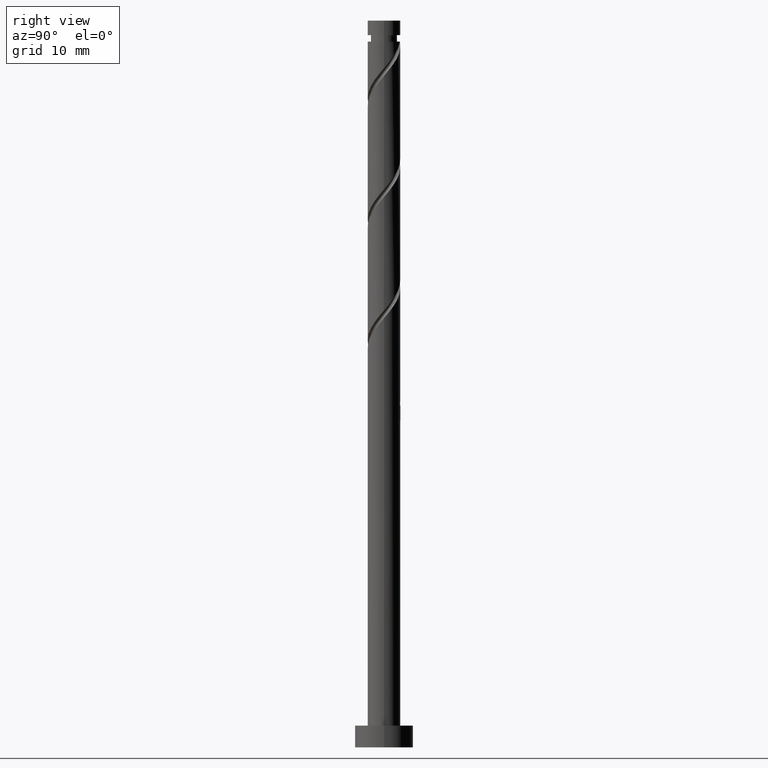
[diagram: clean part render]
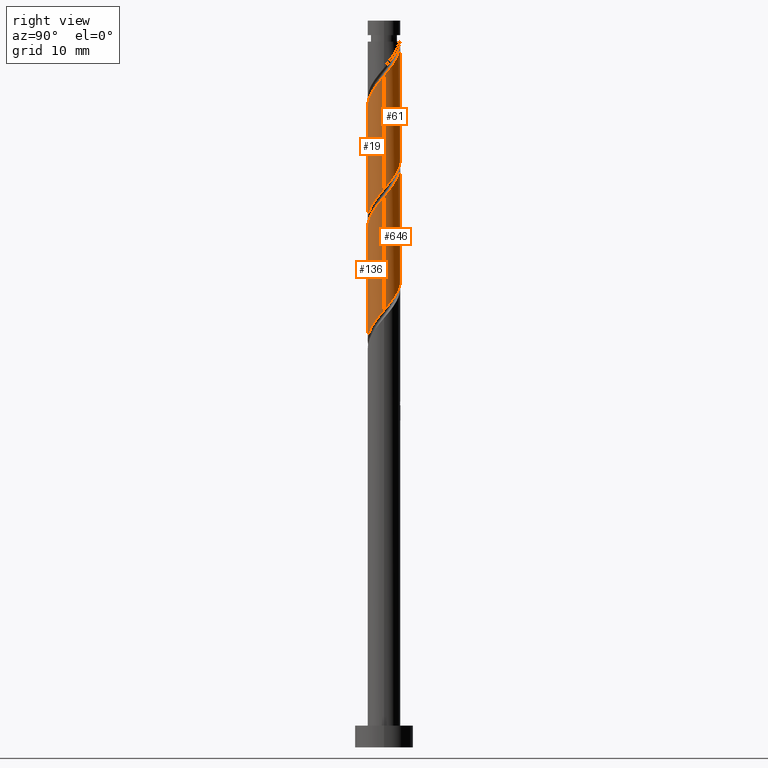
[diagram: same view with one multi-face feature highlighted, each face labeled with its STEP entity id]
A machine part, right view. The highlighted faces form ONE feature: a constant-radius fillet chain: 4 tangent blend faces with common blend radius 2.25 mm. The faces share edges in the B-rep.
Their STEP definitions:
[1] entity #136 (Cylinder):
#62 = CARTESIAN_POINT ( 'NONE',  ( 2.007429886082036763, -1.090928262238790802, 74.41308190522774169 ) ) ;
#88 =( BOUNDED_CURVE ( )  B_SPLINE_CURVE ( 2, ( #966, #669, #398, #859, #751, #207, #1201, #202, #544, #1105, #1100, #181, #639, #1340, #1326, #1093, #411, #62, #535, #519, #975 ),
 .UNSPECIFIED., .F., .T. ) 
 B_SPLINE_CURVE_WITH_KNOTS ( ( 3, 2, 2, 2, 2, 2, 2, 2, 2, 2, 3 ),
 ( 0.3045248053855292847, 0.3055555555555555802, 0.3194444444444444198, 0.3333333333333333703, 0.3472222222222222099, 0.3611111111111111605, 0.3750000000000000000, 0.3888888888888888395, 0.4027777777777777901, 0.4166666666666666297, 0.4295248053855291737 ),
 .UNSPECIFIED. ) 
 CURVE ( )  GEOMETRIC_REPRESENTATION_ITEM ( )  RATIONAL_B_SPLINE_CURVE ( ( 0.9071930855141258077, 0.9080659294509733082, 0.9090909090909131685, 0.8952797754656477425, 0.9090909090909131685, 0.8952797754656477425, 0.9090909090909131685, 0.8952797754656477425, 0.9090909090909131685, 0.8952797754656477425, 0.9090909090909131685, 0.8952797754656477425, 0.9090909090909131685, 0.8952797754656477425, 0.9090909090909131685, 0.8952797754656477425, 0.9090909090909131685, 0.8952797754656477425, 0.9090909090909131685, 0.8963047551055877138, 0.9071930855141256966 ) ) 
 REPRESENTATION_ITEM ( '' )  );
#98 = CARTESIAN_POINT ( 'NONE',  ( -1.513247610087451678, -1.711718695186592809, 54.04271153485735368 ) ) ;
#127 = AXIS2_PLACEMENT_3D ( 'NONE', #178, #299, #198 ) ;
#136 = ADVANCED_FACE ( 'NONE', ( #430 ), #408, .T. ) ;
#163 = CARTESIAN_POINT ( 'NONE',  ( -2.249999999999999556, -3.361267473051105278E-16, 51.79578864540166450 ) ) ;
#178 = CARTESIAN_POINT ( 'NONE',  ( 0.000000000000000000, 0.000000000000000000, 100.0000000000000000 ) ) ;
#181 = CARTESIAN_POINT ( 'NONE',  ( 0.05894335423581345546, -2.283949408782541379, 71.63530412744994180 ) ) ;
#187 = ORIENTED_EDGE ( 'NONE', *, *, #606, .F. ) ;
#198 = DIRECTION ( 'NONE',  ( -1.000000000000000000, 0.000000000000000000, 0.000000000000000000 ) ) ;
#202 = CARTESIAN_POINT ( 'NONE',  ( -1.422941152145175359, -1.787494810738887274, 69.78345227559807995 ) ) ;
#207 = CARTESIAN_POINT ( 'NONE',  ( -1.948486531846222780, -1.193021146543750799, 68.85752634967215613 ) ) ;
#211 = CARTESIAN_POINT ( 'NONE',  ( 1.948486531846220116, -1.193021146543751021, 58.67234116448698700 ) ) ;
#217 = CARTESIAN_POINT ( 'NONE',  ( -2.250000000000000000, 0.000000000000000000, 100.0000000000000000 ) ) ;
#227 = EDGE_CURVE ( 'NONE', #1453, #959, #1236, .T. ) ;
#235 = DIRECTION ( 'NONE',  ( -0.000000000000000000, -0.000000000000000000, -1.000000000000000000 ) ) ;
#237 = CARTESIAN_POINT ( 'NONE',  ( 0.7257680691206149781, -2.166370220145118264, 56.82048931263513936 ) ) ;
#270 = CARTESIAN_POINT ( 'NONE',  ( 2.250000000000002665, -9.038074760870697025E-16, 75.73407886875750705 ) ) ;
#289 = CARTESIAN_POINT ( 'NONE',  ( -2.250000000000002665, 8.963379928136229465E-16, 67.40074553542417846 ) ) ;
#299 = DIRECTION ( 'NONE',  ( -0.000000000000000000, -0.000000000000000000, -1.000000000000000000 ) ) ;
#340 = EDGE_CURVE ( 'NONE', #1024, #959, #1239, .T. ) ;
#379 = CARTESIAN_POINT ( 'NONE',  ( -2.249999999999999556, -3.361267473051105278E-16, 51.79578864540166450 ) ) ;
#398 = CARTESIAN_POINT ( 'NONE',  ( -2.249251085256695593, -0.05804787223997467244, 67.46863746078328461 ) ) ;
#408 = CYLINDRICAL_SURFACE ( 'NONE', #127, 2.250000000000000000 ) ;
#411 = CARTESIAN_POINT ( 'NONE',  ( 1.760338748084745220, -1.401323478712693138, 73.95011894226475135 ) ) ;
#430 = FACE_OUTER_BOUND ( 'NONE', #821, .T. ) ;
#448 = CARTESIAN_POINT ( 'NONE',  ( -0.4477443466979798559, -2.204999999999999627, 55.43160042374625363 ) ) ;
#519 = CARTESIAN_POINT ( 'NONE',  ( 2.250000000000003997, -0.3668723365960258609, 75.30415935639187808 ) ) ;
#535 = CARTESIAN_POINT ( 'NONE',  ( 2.133458188693678981, -0.7147420213586844762, 74.87604486819067517 ) ) ;
#544 = CARTESIAN_POINT ( 'NONE',  ( -1.074354610632896501, -1.976932515442004101, 70.24641523856108449 ) ) ;
#560 = CARTESIAN_POINT ( 'NONE',  ( -1.760338748084743665, -1.401323478712690251, 53.57974857189439888 ) ) ;
#578 = CARTESIAN_POINT ( 'NONE',  ( 2.249251085256692484, -0.05804787223997596307, 60.06123005337588694 ) ) ;
#606 = EDGE_CURVE ( 'NONE', #1092, #1453, #830, .T. ) ;
#618 = VECTOR ( 'NONE', #1270, 1000.000000000000000 ) ;
#639 = CARTESIAN_POINT ( 'NONE',  ( 0.4477443466979795783, -2.205000000000002736, 72.09826709041290371 ) ) ;
#669 = CARTESIAN_POINT ( 'NONE',  ( -2.250000000000002220, -0.02902876724705344413, 67.43476290935652173 ) ) ;
#684 = EDGE_CURVE ( 'NONE', #1024, #1092, #88, .T. ) ;
#690 = CARTESIAN_POINT ( 'NONE',  ( -1.174896474623798870, -1.918884643202026563, 54.50567449782033691 ) ) ;
#700 = CARTESIAN_POINT ( 'NONE',  ( -0.05894335423581530814, -2.283949408782537827, 55.89456338670920843 ) ) ;
#751 = CARTESIAN_POINT ( 'NONE',  ( -2.093751105527146272, -0.8238363357511384599, 68.39456338670919422 ) ) ;
#784 = ORIENTED_EDGE ( 'NONE', *, *, #684, .F. ) ;
#804 = CARTESIAN_POINT ( 'NONE',  ( 1.685713841995696294, -1.490257978641318148, 58.20937820152402509 ) ) ;
#812 = CARTESIAN_POINT ( 'NONE',  ( 2.249999999999999556, -0.02902876724704853834, 60.09510460480264982 ) ) ;
#821 = EDGE_LOOP ( 'NONE', ( #187, #784, #1163, #1339 ) ) ;
#830 = LINE ( 'NONE', #851, #618 ) ;
#851 = CARTESIAN_POINT ( 'NONE',  ( 2.250000000000000000, 2.755455298081543792E-16, 100.0000000000000000 ) ) ;
#859 = CARTESIAN_POINT ( 'NONE',  ( -2.239015679208069987, -0.4546515249585260654, 67.93160042374621810 ) ) ;
#893 = CARTESIAN_POINT ( 'NONE',  ( 0.3334123574424003866, -2.225159814463828045, 56.35752634967216324 ) ) ;
#901 = CARTESIAN_POINT ( 'NONE',  ( 2.249999999999999556, -5.303333124147299307E-16, 60.12912197873500730 ) ) ;
#959 = VERTEX_POINT ( 'NONE', #379 ) ;
#966 = CARTESIAN_POINT ( 'NONE',  ( -2.250000000000002665, 8.963379928136229465E-16, 67.40074553542417846 ) ) ;
#975 = CARTESIAN_POINT ( 'NONE',  ( 2.250000000000002665, -9.038074760870697025E-16, 75.73407886875752126 ) ) ;
#1024 = VERTEX_POINT ( 'NONE', #289 ) ;
#1092 = VERTEX_POINT ( 'NONE', #270 ) ;
#1093 = CARTESIAN_POINT ( 'NONE',  ( 1.513247610087452788, -1.711718695186595252, 73.48715597930180365 ) ) ;
#1095 = CARTESIAN_POINT ( 'NONE',  ( -2.250000000000000000, -0.3668723365960266936, 52.22570815776729347 ) ) ;
#1100 = CARTESIAN_POINT ( 'NONE',  ( -0.3334123574424015524, -2.225159814463832042, 71.17234116448697989 ) ) ;
#1105 = CARTESIAN_POINT ( 'NONE',  ( -0.7257680691206166435, -2.166370220145122261, 70.70937820152398956 ) ) ;
#1113 = CARTESIAN_POINT ( 'NONE',  ( 2.249999999999999556, -5.303333124147299307E-16, 60.12912197873500730 ) ) ;
#1123 = CARTESIAN_POINT ( 'NONE',  ( -0.8365453391601453959, -2.126050591217459651, 54.96863746078327750 ) ) ;
#1140 = CARTESIAN_POINT ( 'NONE',  ( -2.133458188693676760, -0.7147420213586820337, 52.65382264596846795 ) ) ;
#1163 = ORIENTED_EDGE ( 'NONE', *, *, #340, .T. ) ;
#1201 = CARTESIAN_POINT ( 'NONE',  ( -1.685713841995698958, -1.490257978641318370, 69.32048931263514646 ) ) ;
#1234 = CARTESIAN_POINT ( 'NONE',  ( 2.239015679208066878, -0.4546515249585263430, 59.59826709041291082 ) ) ;
#1236 =( BOUNDED_CURVE ( )  B_SPLINE_CURVE ( 2, ( #901, #812, #578, #1234, #1472, #211, #804, #1260, #1464, #237, #893, #700, #448, #1123, #690, #98, #560, #1247, #1140, #1095, #163 ),
 .UNSPECIFIED., .F., .T. ) 
 B_SPLINE_CURVE_WITH_KNOTS ( ( 3, 2, 2, 2, 2, 2, 2, 2, 2, 2, 3 ),
 ( 0.8045248053855290626, 0.8055555555555555802, 0.8194444444444444198, 0.8333333333333333703, 0.8472222222222222099, 0.8611111111111111605, 0.8750000000000000000, 0.8888888888888888395, 0.9027777777777777901, 0.9166666666666666297, 0.9295248053855290626 ),
 .UNSPECIFIED. ) 
 CURVE ( )  GEOMETRIC_REPRESENTATION_ITEM ( )  RATIONAL_B_SPLINE_CURVE ( ( 0.9071930855141199235, 0.9080659294509675350, 0.9090909090909076173, 0.8952797754656421914, 0.9090909090909076173, 0.8952797754656421914, 0.9090909090909076173, 0.8952797754656421914, 0.9090909090909076173, 0.8952797754656421914, 0.9090909090909076173, 0.8952797754656421914, 0.9090909090909076173, 0.8952797754656421914, 0.9090909090909076173, 0.8952797754656421914, 0.9090909090909076173, 0.8952797754656421914, 0.9090909090909076173, 0.8963047551055822737, 0.9071930855141199235 ) ) 
 REPRESENTATION_ITEM ( '' )  );
#1239 = LINE ( 'NONE', #217, #1370 ) ;
#1247 = CARTESIAN_POINT ( 'NONE',  ( -2.007429886082034542, -1.090928262238788804, 53.11678560893142276 ) ) ;
#1260 = CARTESIAN_POINT ( 'NONE',  ( 1.422941152145172916, -1.787494810738885054, 57.74641523856107739 ) ) ;
#1270 = DIRECTION ( 'NONE',  ( -0.000000000000000000, -0.000000000000000000, -1.000000000000000000 ) ) ;
#1326 = CARTESIAN_POINT ( 'NONE',  ( 1.174896474623799092, -1.918884643202029006, 73.02419301633882753 ) ) ;
#1339 = ORIENTED_EDGE ( 'NONE', *, *, #227, .F. ) ;
#1340 = CARTESIAN_POINT ( 'NONE',  ( 0.8365453391601450628, -2.126050591217463204, 72.56123005337589404 ) ) ;
#1370 = VECTOR ( 'NONE', #235, 1000.000000000000000 ) ;
#1453 = VERTEX_POINT ( 'NONE', #1113 ) ;
#1464 = CARTESIAN_POINT ( 'NONE',  ( 1.074354610632894280, -1.976932515442001437, 57.28345227559810837 ) ) ;
#1472 = CARTESIAN_POINT ( 'NONE',  ( 2.093751105527143608, -0.8238363357511377938, 59.13530412744997022 ) ) ;
[2] entity #646 (Cylinder):
#26 = CARTESIAN_POINT ( 'NONE',  ( 2.239015679208069987, 0.4546515249585257323, 76.26493375707958933 ) ) ;
#36 = DIRECTION ( 'NONE',  ( -1.000000000000000000, 0.000000000000000000, 0.000000000000000000 ) ) ;
#51 = EDGE_CURVE ( 'NONE', #268, #1453, #470, .T. ) ;
#75 = CARTESIAN_POINT ( 'NONE',  ( 0.4477443466979802444, 2.204999999999999627, 63.76493375707957512 ) ) ;
#81 = CARTESIAN_POINT ( 'NONE',  ( 1.174896474623799536, 1.918884643202025675, 62.83900783115365130 ) ) ;
#89 = CARTESIAN_POINT ( 'NONE',  ( -2.250000000000003997, 0.3668723365960249172, 83.63749268972522088 ) ) ;
#95 = LINE ( 'NONE', #679, #541 ) ;
#167 = CARTESIAN_POINT ( 'NONE',  ( 2.249999999999999556, -5.303333124147299307E-16, 60.12912197873500730 ) ) ;
#180 = CARTESIAN_POINT ( 'NONE',  ( -0.3334123574424004421, 2.225159814463828045, 64.69085968300549894 ) ) ;
#268 = VERTEX_POINT ( 'NONE', #731 ) ;
#270 = CARTESIAN_POINT ( 'NONE',  ( 2.250000000000002665, -9.038074760870697025E-16, 75.73407886875750705 ) ) ;
#290 = CARTESIAN_POINT ( 'NONE',  ( -2.093751105527143608, 0.8238363357511380158, 67.46863746078328461 ) ) ;
#291 = CARTESIAN_POINT ( 'NONE',  ( -2.250000000000002220, 1.139096199200645277E-15, 84.06741220209080723 ) ) ;
#330 = EDGE_CURVE ( 'NONE', #1038, #268, #95, .T. ) ;
#341 = CARTESIAN_POINT ( 'NONE',  ( 2.133458188693676760, 0.7147420213586825888, 60.98715597930180365 ) ) ;
#382 = CARTESIAN_POINT ( 'NONE',  ( -1.174896474623799092, 1.918884643202029006, 81.35752634967217034 ) ) ;
#388 = CARTESIAN_POINT ( 'NONE',  ( -2.249999999999999556, -3.361267473051105278E-16, 68.46245531206834301 ) ) ;
#390 = CARTESIAN_POINT ( 'NONE',  ( 1.422941152145175359, 1.787494810738887052, 78.11678560893142276 ) ) ;
#470 =( BOUNDED_CURVE ( )  B_SPLINE_CURVE ( 2, ( #388, #637, #850, #1192, #290, #510, #628, #1082, #965, #1199, #180, #764, #75, #1443, #81, #877, #770, #660, #341, #806, #167 ),
 .UNSPECIFIED., .F., .T. ) 
 B_SPLINE_CURVE_WITH_KNOTS ( ( 3, 2, 2, 2, 2, 2, 2, 2, 2, 2, 3 ),
 ( 0.6795248053855290626, 0.6805555555555555802, 0.6944444444444444198, 0.7083333333333333703, 0.7222222222222222099, 0.7361111111111111605, 0.7500000000000000000, 0.7638888888888888395, 0.7777777777777777901, 0.7916666666666666297, 0.8045248053855290626 ),
 .UNSPECIFIED. ) 
 CURVE ( )  GEOMETRIC_REPRESENTATION_ITEM ( )  RATIONAL_B_SPLINE_CURVE ( ( 0.9071930855141199235, 0.9080659294509675350, 0.9090909090909076173, 0.8952797754656421914, 0.9090909090909076173, 0.8952797754656421914, 0.9090909090909076173, 0.8952797754656421914, 0.9090909090909076173, 0.8952797754656421914, 0.9090909090909076173, 0.8952797754656421914, 0.9090909090909076173, 0.8952797754656421914, 0.9090909090909076173, 0.8952797754656421914, 0.9090909090909076173, 0.8952797754656421914, 0.9090909090909076173, 0.8963047551055822737, 0.9071930855141199235 ) ) 
 REPRESENTATION_ITEM ( '' )  );
#488 = AXIS2_PLACEMENT_3D ( 'NONE', #960, #1075, #36 ) ;
#497 = CARTESIAN_POINT ( 'NONE',  ( -0.8365453391601459510, 2.126050591217462760, 80.89456338670920843 ) ) ;
#510 = CARTESIAN_POINT ( 'NONE',  ( -1.948486531846220116, 1.193021146543749911, 67.00567449782030849 ) ) ;
#541 = VECTOR ( 'NONE', #1034, 1000.000000000000000 ) ;
#606 = EDGE_CURVE ( 'NONE', #1092, #1453, #830, .T. ) ;
#617 = CARTESIAN_POINT ( 'NONE',  ( -0.4477443466979794118, 2.205000000000002736, 80.43160042374627494 ) ) ;
#618 = VECTOR ( 'NONE', #1270, 1000.000000000000000 ) ;
#624 = CARTESIAN_POINT ( 'NONE',  ( 2.249251085256695593, 0.05804787223997486673, 75.80197079411659900 ) ) ;
#628 = CARTESIAN_POINT ( 'NONE',  ( -1.685713841995696738, 1.490257978641317482, 66.54271153485734658 ) ) ;
#636 = CARTESIAN_POINT ( 'NONE',  ( -2.250000000000002220, 1.139096199200645277E-15, 84.06741220209080723 ) ) ;
#637 = CARTESIAN_POINT ( 'NONE',  ( -2.249999999999999556, 0.02902876724704770567, 68.42843793813598552 ) ) ;
#646 = ADVANCED_FACE ( 'NONE', ( #837 ), #935, .T. ) ;
#647 = ORIENTED_EDGE ( 'NONE', *, *, #606, .T. ) ;
#660 = CARTESIAN_POINT ( 'NONE',  ( 2.007429886082034542, 1.090928262238788582, 61.45011894226475846 ) ) ;
#662 = ORIENTED_EDGE ( 'NONE', *, *, #330, .F. ) ;
#675 = EDGE_CURVE ( 'NONE', #1092, #1038, #814, .T. ) ;
#679 = CARTESIAN_POINT ( 'NONE',  ( -2.250000000000000000, 0.000000000000000000, 100.0000000000000000 ) ) ;
#730 = CARTESIAN_POINT ( 'NONE',  ( 2.250000000000002665, -9.038074760870697025E-16, 75.73407886875752126 ) ) ;
#731 = CARTESIAN_POINT ( 'NONE',  ( -2.249999999999999556, -3.361267473051105278E-16, 68.46245531206834301 ) ) ;
#745 = CARTESIAN_POINT ( 'NONE',  ( -0.05894335423581414241, 2.283949408782541379, 79.96863746078328461 ) ) ;
#764 = CARTESIAN_POINT ( 'NONE',  ( 0.05894335423581447547, 2.283949408782537827, 64.22789672004255124 ) ) ;
#770 = CARTESIAN_POINT ( 'NONE',  ( 1.760338748084743887, 1.401323478712690029, 61.91308190522773458 ) ) ;
#806 = CARTESIAN_POINT ( 'NONE',  ( 2.249999999999999556, 0.3668723365960254723, 60.55904149110064338 ) ) ;
#814 =( BOUNDED_CURVE ( )  B_SPLINE_CURVE ( 2, ( #730, #1415, #624, #26, #1308, #952, #1403, #390, #1409, #1178, #844, #745, #617, #497, #382, #1115, #1426, #1314, #878, #89, #291 ),
 .UNSPECIFIED., .F., .T. ) 
 B_SPLINE_CURVE_WITH_KNOTS ( ( 3, 2, 2, 2, 2, 2, 2, 2, 2, 2, 3 ),
 ( 0.4295248053855291737, 0.4305555555555555802, 0.4444444444444444198, 0.4583333333333333703, 0.4722222222222222099, 0.4861111111111111605, 0.5000000000000000000, 0.5138888888888888395, 0.5277777777777777901, 0.5416666666666667407, 0.5545248053855291737 ),
 .UNSPECIFIED. ) 
 CURVE ( )  GEOMETRIC_REPRESENTATION_ITEM ( )  RATIONAL_B_SPLINE_CURVE ( ( 0.9071930855141256966, 0.9080659294509731971, 0.9090909090909131685, 0.8952797754656477425, 0.9090909090909131685, 0.8952797754656477425, 0.9090909090909131685, 0.8952797754656477425, 0.9090909090909131685, 0.8952797754656477425, 0.9090909090909131685, 0.8952797754656477425, 0.9090909090909131685, 0.8952797754656477425, 0.9090909090909131685, 0.8952797754656477425, 0.9090909090909131685, 0.8952797754656477425, 0.9090909090909131685, 0.8963047551055877138, 0.9071930855141255856 ) ) 
 REPRESENTATION_ITEM ( '' )  );
#830 = LINE ( 'NONE', #851, #618 ) ;
#837 = FACE_OUTER_BOUND ( 'NONE', #1007, .T. ) ;
#844 = CARTESIAN_POINT ( 'NONE',  ( 0.3334123574424028846, 2.225159814463832042, 79.50567449782033691 ) ) ;
#850 = CARTESIAN_POINT ( 'NONE',  ( -2.249251085256692484, 0.05804787223997515816, 68.39456338670922264 ) ) ;
#851 = CARTESIAN_POINT ( 'NONE',  ( 2.250000000000000000, 2.755455298081543792E-16, 100.0000000000000000 ) ) ;
#877 = CARTESIAN_POINT ( 'NONE',  ( 1.513247610087452788, 1.711718695186591033, 62.37604486819068939 ) ) ;
#878 = CARTESIAN_POINT ( 'NONE',  ( -2.133458188693679425, 0.7147420213586835880, 83.20937820152400377 ) ) ;
#935 = CYLINDRICAL_SURFACE ( 'NONE', #488, 2.250000000000000000 ) ;
#952 = CARTESIAN_POINT ( 'NONE',  ( 1.948486531846223446, 1.193021146543749689, 77.19085968300548473 ) ) ;
#960 = CARTESIAN_POINT ( 'NONE',  ( 0.000000000000000000, 0.000000000000000000, 100.0000000000000000 ) ) ;
#965 = CARTESIAN_POINT ( 'NONE',  ( -1.074354610632894280, 1.976932515442001437, 65.61678560893143697 ) ) ;
#1007 = EDGE_LOOP ( 'NONE', ( #1268, #647, #1060, #662 ) ) ;
#1034 = DIRECTION ( 'NONE',  ( -0.000000000000000000, -0.000000000000000000, -1.000000000000000000 ) ) ;
#1038 = VERTEX_POINT ( 'NONE', #636 ) ;
#1060 = ORIENTED_EDGE ( 'NONE', *, *, #51, .F. ) ;
#1075 = DIRECTION ( 'NONE',  ( -0.000000000000000000, -0.000000000000000000, -1.000000000000000000 ) ) ;
#1082 = CARTESIAN_POINT ( 'NONE',  ( -1.422941152145173360, 1.787494810738884832, 66.07974857189439888 ) ) ;
#1092 = VERTEX_POINT ( 'NONE', #270 ) ;
#1113 = CARTESIAN_POINT ( 'NONE',  ( 2.249999999999999556, -5.303333124147299307E-16, 60.12912197873500730 ) ) ;
#1115 = CARTESIAN_POINT ( 'NONE',  ( -1.513247610087453010, 1.711718695186594807, 81.82048931263513225 ) ) ;
#1178 = CARTESIAN_POINT ( 'NONE',  ( 0.7257680691206175316, 2.166370220145120928, 79.04271153485736079 ) ) ;
#1192 = CARTESIAN_POINT ( 'NONE',  ( -2.239015679208066878, 0.4546515249585260099, 67.93160042374621810 ) ) ;
#1199 = CARTESIAN_POINT ( 'NONE',  ( -0.7257680691206154222, 2.166370220145118708, 65.15382264596847506 ) ) ;
#1268 = ORIENTED_EDGE ( 'NONE', *, *, #675, .F. ) ;
#1270 = DIRECTION ( 'NONE',  ( -0.000000000000000000, -0.000000000000000000, -1.000000000000000000 ) ) ;
#1308 = CARTESIAN_POINT ( 'NONE',  ( 2.093751105527146716, 0.8238363357511376828, 76.72789672004252282 ) ) ;
#1314 = CARTESIAN_POINT ( 'NONE',  ( -2.007429886082036763, 1.090928262238790580, 82.74641523856107028 ) ) ;
#1403 = CARTESIAN_POINT ( 'NONE',  ( 1.685713841995698958, 1.490257978641319037, 77.65382264596847506 ) ) ;
#1409 = CARTESIAN_POINT ( 'NONE',  ( 1.074354610632896723, 1.976932515442004101, 78.57974857189439888 ) ) ;
#1415 = CARTESIAN_POINT ( 'NONE',  ( 2.250000000000001776, 0.02902876724705040490, 75.76809624268985033 ) ) ;
#1426 = CARTESIAN_POINT ( 'NONE',  ( -1.760338748084745220, 1.401323478712693138, 82.28345227559810837 ) ) ;
#1443 = CARTESIAN_POINT ( 'NONE',  ( 0.8365453391601450628, 2.126050591217459651, 63.30197079411660610 ) ) ;
#1453 = VERTEX_POINT ( 'NONE', #1113 ) ;
[3] entity #19 (Cylinder):
#9 = CARTESIAN_POINT ( 'NONE',  ( 0.4477443466979795783, -2.205000000000002736, 88.76493375707957512 ) ) ;
#19 = ADVANCED_FACE ( 'NONE', ( #380 ), #483, .T. ) ;
#24 = CARTESIAN_POINT ( 'NONE',  ( 2.250000000000002220, -1.146565682474092428E-15, 92.40074553542416425 ) ) ;
#42 = CARTESIAN_POINT ( 'NONE',  ( 0.000000000000000000, 0.000000000000000000, 100.0000000000000000 ) ) ;
#58 = ORIENTED_EDGE ( 'NONE', *, *, #593, .F. ) ;
#95 = LINE ( 'NONE', #679, #541 ) ;
#123 = CARTESIAN_POINT ( 'NONE',  ( -1.422941152145175359, -1.787494810738887274, 86.45011894226476556 ) ) ;
#133 = ORIENTED_EDGE ( 'NONE', *, *, #958, .F. ) ;
#135 = CARTESIAN_POINT ( 'NONE',  ( 0.05894335423581345546, -2.283949408782541379, 88.30197079411659900 ) ) ;
#137 = CARTESIAN_POINT ( 'NONE',  ( 2.250000000000000000, 2.755455298081543792E-16, 100.0000000000000000 ) ) ;
#141 = CARTESIAN_POINT ( 'NONE',  ( -0.3334123574424015524, -2.225159814463832042, 87.83900783115367972 ) ) ;
#194 = VERTEX_POINT ( 'NONE', #570 ) ;
#215 = CARTESIAN_POINT ( 'NONE',  ( -2.239015679208069987, -0.4546515249585260654, 84.59826709041290371 ) ) ;
#257 = CARTESIAN_POINT ( 'NONE',  ( 2.133458188693678981, -0.7147420213586844762, 91.54271153485734658 ) ) ;
#268 = VERTEX_POINT ( 'NONE', #731 ) ;
#283 = DIRECTION ( 'NONE',  ( -0.000000000000000000, -0.000000000000000000, -1.000000000000000000 ) ) ;
#321 = CARTESIAN_POINT ( 'NONE',  ( 2.250000000000002220, -1.146565682474092231E-15, 92.40074553542415003 ) ) ;
#326 = AXIS2_PLACEMENT_3D ( 'NONE', #42, #283, #372 ) ;
#330 = EDGE_CURVE ( 'NONE', #1038, #268, #95, .T. ) ;
#353 = CARTESIAN_POINT ( 'NONE',  ( 0.3334123574424003866, -2.225159814463828045, 73.02419301633882753 ) ) ;
#358 = CARTESIAN_POINT ( 'NONE',  ( 2.249251085256692484, -0.05804787223997596307, 76.72789672004252282 ) ) ;
#364 = CARTESIAN_POINT ( 'NONE',  ( 1.760338748084745220, -1.401323478712693138, 90.61678560893143697 ) ) ;
#371 = CARTESIAN_POINT ( 'NONE',  ( -1.513247610087451678, -1.711718695186592809, 70.70937820152400377 ) ) ;
#372 = DIRECTION ( 'NONE',  ( -1.000000000000000000, 0.000000000000000000, 0.000000000000000000 ) ) ;
#380 = FACE_OUTER_BOUND ( 'NONE', #836, .T. ) ;
#434 = CARTESIAN_POINT ( 'NONE',  ( -2.249251085256695593, -0.05804787223997467244, 84.13530412744994180 ) ) ;
#442 =( BOUNDED_CURVE ( )  B_SPLINE_CURVE ( 2, ( #1383, #933, #358, #1286, #604, #1346, #586, #550, #1391, #1008, #353, #785, #1467, #677, #1459, #371, #1374, #1237, #1120, #715, #721 ),
 .UNSPECIFIED., .F., .T. ) 
 B_SPLINE_CURVE_WITH_KNOTS ( ( 3, 2, 2, 2, 2, 2, 2, 2, 2, 2, 3 ),
 ( 0.5545248053855291737, 0.5555555555555555802, 0.5694444444444444198, 0.5833333333333333703, 0.5972222222222222099, 0.6111111111111111605, 0.6250000000000000000, 0.6388888888888888395, 0.6527777777777777901, 0.6666666666666666297, 0.6795248053855290626 ),
 .UNSPECIFIED. ) 
 CURVE ( )  GEOMETRIC_REPRESENTATION_ITEM ( )  RATIONAL_B_SPLINE_CURVE ( ( 0.9071930855141200345, 0.9080659294509676460, 0.9090909090909076173, 0.8952797754656421914, 0.9090909090909076173, 0.8952797754656421914, 0.9090909090909076173, 0.8952797754656421914, 0.9090909090909076173, 0.8952797754656421914, 0.9090909090909076173, 0.8952797754656421914, 0.9090909090909076173, 0.8952797754656421914, 0.9090909090909076173, 0.8952797754656421914, 0.9090909090909076173, 0.8952797754656421914, 0.9090909090909076173, 0.8963047551055822737, 0.9071930855141199235 ) ) 
 REPRESENTATION_ITEM ( '' )  );
#478 = CARTESIAN_POINT ( 'NONE',  ( 1.513247610087452788, -1.711718695186595252, 90.15382264596846085 ) ) ;
#483 = CYLINDRICAL_SURFACE ( 'NONE', #326, 2.250000000000000000 ) ;
#541 = VECTOR ( 'NONE', #1034, 1000.000000000000000 ) ;
#550 = CARTESIAN_POINT ( 'NONE',  ( 1.422941152145172916, -1.787494810738885054, 74.41308190522771326 ) ) ;
#570 = CARTESIAN_POINT ( 'NONE',  ( 2.249999999999999556, -5.303333124147299307E-16, 76.79578864540165739 ) ) ;
#586 = CARTESIAN_POINT ( 'NONE',  ( 1.685713841995696294, -1.490257978641318148, 74.87604486819068939 ) ) ;
#593 = EDGE_CURVE ( 'NONE', #723, #194, #823, .T. ) ;
#596 = CARTESIAN_POINT ( 'NONE',  ( 0.8365453391601450628, -2.126050591217463204, 89.22789672004253703 ) ) ;
#604 = CARTESIAN_POINT ( 'NONE',  ( 2.093751105527143608, -0.8238363357511377938, 75.80197079411661321 ) ) ;
#636 = CARTESIAN_POINT ( 'NONE',  ( -2.250000000000002220, 1.139096199200645277E-15, 84.06741220209080723 ) ) ;
#677 = CARTESIAN_POINT ( 'NONE',  ( -0.8365453391601453959, -2.126050591217459651, 71.63530412744994180 ) ) ;
#679 = CARTESIAN_POINT ( 'NONE',  ( -2.250000000000000000, 0.000000000000000000, 100.0000000000000000 ) ) ;
#708 = CARTESIAN_POINT ( 'NONE',  ( -1.948486531846222780, -1.193021146543750799, 85.52419301633882753 ) ) ;
#715 = CARTESIAN_POINT ( 'NONE',  ( -2.250000000000000000, -0.3668723365960266936, 68.89237482443395777 ) ) ;
#721 = CARTESIAN_POINT ( 'NONE',  ( -2.249999999999999556, -3.361267473051105278E-16, 68.46245531206834301 ) ) ;
#723 = VERTEX_POINT ( 'NONE', #321 ) ;
#731 = CARTESIAN_POINT ( 'NONE',  ( -2.249999999999999556, -3.361267473051105278E-16, 68.46245531206834301 ) ) ;
#739 = VECTOR ( 'NONE', #1068, 1000.000000000000000 ) ;
#785 = CARTESIAN_POINT ( 'NONE',  ( -0.05894335423581530814, -2.283949408782537827, 72.56123005337586562 ) ) ;
#815 = CARTESIAN_POINT ( 'NONE',  ( -2.093751105527146272, -0.8238363357511384599, 85.06123005337586562 ) ) ;
#823 = LINE ( 'NONE', #137, #739 ) ;
#826 = CARTESIAN_POINT ( 'NONE',  ( 2.007429886082036763, -1.090928262238790802, 91.07974857189437046 ) ) ;
#836 = EDGE_LOOP ( 'NONE', ( #58, #133, #1402, #1281 ) ) ;
#909 = EDGE_CURVE ( 'NONE', #194, #268, #442, .T. ) ;
#910 =( BOUNDED_CURVE ( )  B_SPLINE_CURVE ( 2, ( #918, #924, #434, #215, #815, #708, #1152, #123, #1045, #1278, #141, #135, #9, #596, #1052, #478, #364, #826, #257, #1058, #24 ),
 .UNSPECIFIED., .F., .T. ) 
 B_SPLINE_CURVE_WITH_KNOTS ( ( 3, 2, 2, 2, 2, 2, 2, 2, 2, 2, 3 ),
 ( 0.5545248053855291737, 0.5555555555555555802, 0.5694444444444444198, 0.5833333333333332593, 0.5972222222222222099, 0.6111111111111111605, 0.6250000000000000000, 0.6388888888888888395, 0.6527777777777777901, 0.6666666666666667407, 0.6795248053855291737 ),
 .UNSPECIFIED. ) 
 CURVE ( )  GEOMETRIC_REPRESENTATION_ITEM ( )  RATIONAL_B_SPLINE_CURVE ( ( 0.9071930855141255856, 0.9080659294509731971, 0.9090909090909131685, 0.8952797754656477425, 0.9090909090909131685, 0.8952797754656477425, 0.9090909090909131685, 0.8952797754656477425, 0.9090909090909131685, 0.8952797754656477425, 0.9090909090909131685, 0.8952797754656477425, 0.9090909090909131685, 0.8952797754656477425, 0.9090909090909131685, 0.8952797754656477425, 0.9090909090909131685, 0.8952797754656477425, 0.9090909090909131685, 0.8963047551055877138, 0.9071930855141255856 ) ) 
 REPRESENTATION_ITEM ( '' )  );
#918 = CARTESIAN_POINT ( 'NONE',  ( -2.250000000000002220, 1.139096199200645277E-15, 84.06741220209080723 ) ) ;
#924 = CARTESIAN_POINT ( 'NONE',  ( -2.250000000000001776, -0.02902876724705009612, 84.10142957602316471 ) ) ;
#933 = CARTESIAN_POINT ( 'NONE',  ( 2.249999999999999556, -0.02902876724705167472, 76.76177127146927148 ) ) ;
#958 = EDGE_CURVE ( 'NONE', #1038, #723, #910, .T. ) ;
#1008 = CARTESIAN_POINT ( 'NONE',  ( 0.7257680691206149781, -2.166370220145118264, 73.48715597930180365 ) ) ;
#1034 = DIRECTION ( 'NONE',  ( -0.000000000000000000, -0.000000000000000000, -1.000000000000000000 ) ) ;
#1038 = VERTEX_POINT ( 'NONE', #636 ) ;
#1045 = CARTESIAN_POINT ( 'NONE',  ( -1.074354610632896501, -1.976932515442004101, 86.91308190522774169 ) ) ;
#1052 = CARTESIAN_POINT ( 'NONE',  ( 1.174896474623799092, -1.918884643202029006, 89.69085968300549894 ) ) ;
#1058 = CARTESIAN_POINT ( 'NONE',  ( 2.250000000000003997, -0.3668723365960260829, 91.97082602305856369 ) ) ;
#1068 = DIRECTION ( 'NONE',  ( -0.000000000000000000, -0.000000000000000000, -1.000000000000000000 ) ) ;
#1120 = CARTESIAN_POINT ( 'NONE',  ( -2.133458188693676760, -0.7147420213586820337, 69.32048931263514646 ) ) ;
#1152 = CARTESIAN_POINT ( 'NONE',  ( -1.685713841995698958, -1.490257978641318370, 85.98715597930181787 ) ) ;
#1237 = CARTESIAN_POINT ( 'NONE',  ( -2.007429886082034542, -1.090928262238788804, 69.78345227559807995 ) ) ;
#1278 = CARTESIAN_POINT ( 'NONE',  ( -0.7257680691206166435, -2.166370220145122261, 87.37604486819070360 ) ) ;
#1281 = ORIENTED_EDGE ( 'NONE', *, *, #909, .F. ) ;
#1286 = CARTESIAN_POINT ( 'NONE',  ( 2.239015679208066878, -0.4546515249585263430, 76.26493375707957512 ) ) ;
#1346 = CARTESIAN_POINT ( 'NONE',  ( 1.948486531846220116, -1.193021146543751021, 75.33900783115366551 ) ) ;
#1374 = CARTESIAN_POINT ( 'NONE',  ( -1.760338748084743665, -1.401323478712690251, 70.24641523856107028 ) ) ;
#1383 = CARTESIAN_POINT ( 'NONE',  ( 2.249999999999999556, -5.303333124147299307E-16, 76.79578864540165739 ) ) ;
#1391 = CARTESIAN_POINT ( 'NONE',  ( 1.074354610632894280, -1.976932515442001437, 73.95011894226480820 ) ) ;
#1402 = ORIENTED_EDGE ( 'NONE', *, *, #330, .T. ) ;
#1459 = CARTESIAN_POINT ( 'NONE',  ( -1.174896474623798870, -1.918884643202026563, 71.17234116448699410 ) ) ;
#1467 = CARTESIAN_POINT ( 'NONE',  ( -0.4477443466979798559, -2.204999999999999627, 72.09826709041290371 ) ) ;
[4] entity #61 (Cylinder):
#55 = FACE_OUTER_BOUND ( 'NONE', #91, .T. ) ;
#61 = ADVANCED_FACE ( 'NONE', ( #55 ), #1455, .T. ) ;
#65 = DIRECTION ( 'NONE',  ( -0.000000000000000000, -0.000000000000000000, -1.000000000000000000 ) ) ;
#67 = ORIENTED_EDGE ( 'NONE', *, *, #193, .T. ) ;
#91 = EDGE_LOOP ( 'NONE', ( #376, #594, #1394, #1375, #67 ) ) ;
#137 = CARTESIAN_POINT ( 'NONE',  ( 2.250000000000000000, 2.755455298081543792E-16, 100.0000000000000000 ) ) ;
#148 =( BOUNDED_CURVE ( )  B_SPLINE_CURVE ( 2, ( #188, #1207, #648, #527, #1215, #984, #1438, #1444, #1335, #316, #261, #727, #889 ),
 .UNSPECIFIED., .F., .T. ) 
 B_SPLINE_CURVE_WITH_KNOTS ( ( 3, 2, 2, 2, 2, 2, 3 ),
 ( 0.6795248053855291737, 0.6805555555555555802, 0.6944444444444444198, 0.7083333333333331483, 0.7222222222222220989, 0.7361111111111109384, 0.7499999999999997780 ),
 .UNSPECIFIED. ) 
 CURVE ( )  GEOMETRIC_REPRESENTATION_ITEM ( )  RATIONAL_B_SPLINE_CURVE ( ( 0.9071930855141255856, 0.9080659294509731971, 0.9090909090909131685, 0.8952797754656477425, 0.9090909090909131685, 0.8952797754656477425, 0.9090909090909131685, 0.8952797754656477425, 0.9090909090909131685, 0.8952797754656477425, 0.9090909090909131685, 0.8952797754656479645, 0.9090909090909129464 ) ) 
 REPRESENTATION_ITEM ( '' )  );
#188 = CARTESIAN_POINT ( 'NONE',  ( 2.250000000000002220, -1.146565682474092428E-15, 92.40074553542416425 ) ) ;
#193 = EDGE_CURVE ( 'NONE', #736, #955, #1422, .T. ) ;
#194 = VERTEX_POINT ( 'NONE', #570 ) ;
#223 = CARTESIAN_POINT ( 'NONE',  ( -1.948486531846220116, 1.193021146543749911, 83.67234116448700831 ) ) ;
#229 = AXIS2_PLACEMENT_3D ( 'NONE', #1030, #1486, #922 ) ;
#241 = CARTESIAN_POINT ( 'NONE',  ( 2.249999999999999556, -5.303333124147299307E-16, 76.79578864540165739 ) ) ;
#261 = CARTESIAN_POINT ( 'NONE',  ( 0.3334123574424028846, 2.225159814463832042, 96.17234116448700831 ) ) ;
#316 = CARTESIAN_POINT ( 'NONE',  ( 0.7257680691206175316, 2.166370220145120928, 95.70937820152403219 ) ) ;
#321 = CARTESIAN_POINT ( 'NONE',  ( 2.250000000000002220, -1.146565682474092231E-15, 92.40074553542415003 ) ) ;
#329 = CARTESIAN_POINT ( 'NONE',  ( -0.4477443466979791897, 2.205000000000000071, 97.09826709041288950 ) ) ;
#336 = CARTESIAN_POINT ( 'NONE',  ( 1.174896474623799536, 1.918884643202025675, 79.50567449782033691 ) ) ;
#345 = EDGE_CURVE ( 'NONE', #1405, #194, #979, .T. ) ;
#348 = CARTESIAN_POINT ( 'NONE',  ( 1.513247610087452788, 1.711718695186591033, 79.04271153485734658 ) ) ;
#376 = ORIENTED_EDGE ( 'NONE', *, *, #865, .F. ) ;
#457 = CARTESIAN_POINT ( 'NONE',  ( 0.4477443466979802444, 2.204999999999999627, 80.43160042374626073 ) ) ;
#473 = CARTESIAN_POINT ( 'NONE',  ( 2.007429886082034542, 1.090928262238788582, 78.11678560893142276 ) ) ;
#494 = DIRECTION ( 'NONE',  ( -0.000000000000000000, -0.000000000000000000, -1.000000000000000000 ) ) ;
#527 = CARTESIAN_POINT ( 'NONE',  ( 2.239015679208069987, 0.4546515249585257323, 92.93160042374623231 ) ) ;
#539 = DIRECTION ( 'NONE',  ( -1.000000000000000000, 0.000000000000000000, 0.000000000000000000 ) ) ;
#565 = CARTESIAN_POINT ( 'NONE',  ( -2.239015679208066878, 0.4546515249585260099, 84.59826709041293213 ) ) ;
#570 = CARTESIAN_POINT ( 'NONE',  ( 2.249999999999999556, -5.303333124147299307E-16, 76.79578864540165739 ) ) ;
#575 = CARTESIAN_POINT ( 'NONE',  ( -1.422941152145173360, 1.787494810738884832, 82.74641523856107028 ) ) ;
#581 = CARTESIAN_POINT ( 'NONE',  ( -1.074354610632894280, 1.976932515442001437, 82.28345227559810837 ) ) ;
#588 = CARTESIAN_POINT ( 'NONE',  ( -1.685713841995696738, 1.490257978641317482, 83.20937820152400377 ) ) ;
#593 = EDGE_CURVE ( 'NONE', #723, #194, #823, .T. ) ;
#594 = ORIENTED_EDGE ( 'NONE', *, *, #593, .T. ) ;
#627 = CARTESIAN_POINT ( 'NONE',  ( -2.250000000000000000, 0.000000000000000000, 100.0000000000000000 ) ) ;
#648 = CARTESIAN_POINT ( 'NONE',  ( 2.249251085256695593, 0.05804787223997486673, 92.46863746078329882 ) ) ;
#693 = VECTOR ( 'NONE', #494, 1000.000000000000000 ) ;
#723 = VERTEX_POINT ( 'NONE', #321 ) ;
#727 = CARTESIAN_POINT ( 'NONE',  ( -0.05894335423580777250, 2.283949408782541823, 96.63530412744997022 ) ) ;
#736 = VERTEX_POINT ( 'NONE', #1109 ) ;
#739 = VECTOR ( 'NONE', #1068, 1000.000000000000000 ) ;
#792 = CARTESIAN_POINT ( 'NONE',  ( 1.760338748084743887, 1.401323478712690029, 78.57974857189439888 ) ) ;
#809 = CARTESIAN_POINT ( 'NONE',  ( 2.250000000000000000, 0.3668723365960223637, 77.22570815776730058 ) ) ;
#823 = LINE ( 'NONE', #137, #739 ) ;
#828 = AXIS2_PLACEMENT_3D ( 'NONE', #1218, #65, #539 ) ;
#865 = EDGE_CURVE ( 'NONE', #723, #955, #148, .T. ) ;
#889 = CARTESIAN_POINT ( 'NONE',  ( -0.4477443466979791342, 2.205000000000000071, 97.09826709041288950 ) ) ;
#899 = CARTESIAN_POINT ( 'NONE',  ( 0.8365453391601450628, 2.126050591217459651, 79.96863746078329882 ) ) ;
#922 = DIRECTION ( 'NONE',  ( -1.000000000000000000, 0.000000000000000000, 0.000000000000000000 ) ) ;
#955 = VERTEX_POINT ( 'NONE', #329 ) ;
#957 = LINE ( 'NONE', #627, #693 ) ;
#979 =( BOUNDED_CURVE ( )  B_SPLINE_CURVE ( 2, ( #1469, #1146, #1129, #565, #1138, #223, #588, #575, #581, #1483, #1357, #1046, #457, #899, #336, #348, #792, #473, #1477, #809, #241 ),
 .UNSPECIFIED., .F., .T. ) 
 B_SPLINE_CURVE_WITH_KNOTS ( ( 3, 2, 2, 2, 2, 2, 2, 2, 2, 2, 3 ),
 ( 0.4295248053855288406, 0.4305555555555555802, 0.4444444444444444198, 0.4583333333333333148, 0.4722222222222222099, 0.4861111111111111049, 0.5000000000000000000, 0.5138888888888888395, 0.5277777777777777901, 0.5416666666666666297, 0.5545248053855291737 ),
 .UNSPECIFIED. ) 
 CURVE ( )  GEOMETRIC_REPRESENTATION_ITEM ( )  RATIONAL_B_SPLINE_CURVE ( ( 0.9071930855141194794, 0.9080659294509673130, 0.9090909090909076173, 0.8952797754656421914, 0.9090909090909076173, 0.8952797754656421914, 0.9090909090909076173, 0.8952797754656421914, 0.9090909090909076173, 0.8952797754656421914, 0.9090909090909076173, 0.8952797754656421914, 0.9090909090909076173, 0.8952797754656421914, 0.9090909090909076173, 0.8952797754656421914, 0.9090909090909076173, 0.8952797754656421914, 0.9090909090909076173, 0.8963047551055821627, 0.9071930855141200345 ) ) 
 REPRESENTATION_ITEM ( '' )  );
#984 = CARTESIAN_POINT ( 'NONE',  ( 1.948486531846223446, 1.193021146543749689, 93.85752634967217034 ) ) ;
#1030 = CARTESIAN_POINT ( 'NONE',  ( 0.000000000000000000, 0.000000000000000000, 97.09826709041291792 ) ) ;
#1046 = CARTESIAN_POINT ( 'NONE',  ( 0.05894335423581447547, 2.283949408782537827, 80.89456338670920843 ) ) ;
#1053 = EDGE_CURVE ( 'NONE', #736, #1405, #957, .T. ) ;
#1068 = DIRECTION ( 'NONE',  ( -0.000000000000000000, -0.000000000000000000, -1.000000000000000000 ) ) ;
#1109 = CARTESIAN_POINT ( 'NONE',  ( -2.250000000000000444, 0.000000000000000000, 97.09826709041291792 ) ) ;
#1129 = CARTESIAN_POINT ( 'NONE',  ( -2.249251085256692484, 0.05804787223997515816, 85.06123005337590826 ) ) ;
#1138 = CARTESIAN_POINT ( 'NONE',  ( -2.093751105527143608, 0.8238363357511380158, 84.13530412744997022 ) ) ;
#1146 = CARTESIAN_POINT ( 'NONE',  ( -2.250000000000000444, 0.02902876724704132189, 85.09510460480268534 ) ) ;
#1207 = CARTESIAN_POINT ( 'NONE',  ( 2.250000000000001776, 0.02902876724705018632, 92.43476290935652173 ) ) ;
#1215 = CARTESIAN_POINT ( 'NONE',  ( 2.093751105527146716, 0.8238363357511376828, 93.39456338670919422 ) ) ;
#1218 = CARTESIAN_POINT ( 'NONE',  ( 0.000000000000000000, 0.000000000000000000, 100.0000000000000000 ) ) ;
#1335 = CARTESIAN_POINT ( 'NONE',  ( 1.074354610632896723, 1.976932515442004101, 95.24641523856105607 ) ) ;
#1338 = CARTESIAN_POINT ( 'NONE',  ( -2.250000000000000000, -5.676807287819645982E-16, 85.12912197873504283 ) ) ;
#1357 = CARTESIAN_POINT ( 'NONE',  ( -0.3334123574424004421, 2.225159814463828045, 81.35752634967217034 ) ) ;
#1375 = ORIENTED_EDGE ( 'NONE', *, *, #1053, .F. ) ;
#1394 = ORIENTED_EDGE ( 'NONE', *, *, #345, .F. ) ;
#1405 = VERTEX_POINT ( 'NONE', #1338 ) ;
#1422 = CIRCLE ( 'NONE', #229, 2.250000000000000444 ) ;
#1438 = CARTESIAN_POINT ( 'NONE',  ( 1.685713841995698958, 1.490257978641319037, 94.32048931263516067 ) ) ;
#1444 = CARTESIAN_POINT ( 'NONE',  ( 1.422941152145175359, 1.787494810738887052, 94.78345227559810837 ) ) ;
#1455 = CYLINDRICAL_SURFACE ( 'NONE', #828, 2.250000000000000000 ) ;
#1469 = CARTESIAN_POINT ( 'NONE',  ( -2.250000000000000000, -5.676807287819645982E-16, 85.12912197873504283 ) ) ;
#1477 = CARTESIAN_POINT ( 'NONE',  ( 2.133458188693676760, 0.7147420213586825888, 77.65382264596846085 ) ) ;
#1483 = CARTESIAN_POINT ( 'NONE',  ( -0.7257680691206154222, 2.166370220145118708, 81.82048931263513225 ) ) ;
#1486 = DIRECTION ( 'NONE',  ( -0.000000000000000000, -0.000000000000000000, -1.000000000000000000 ) ) ;